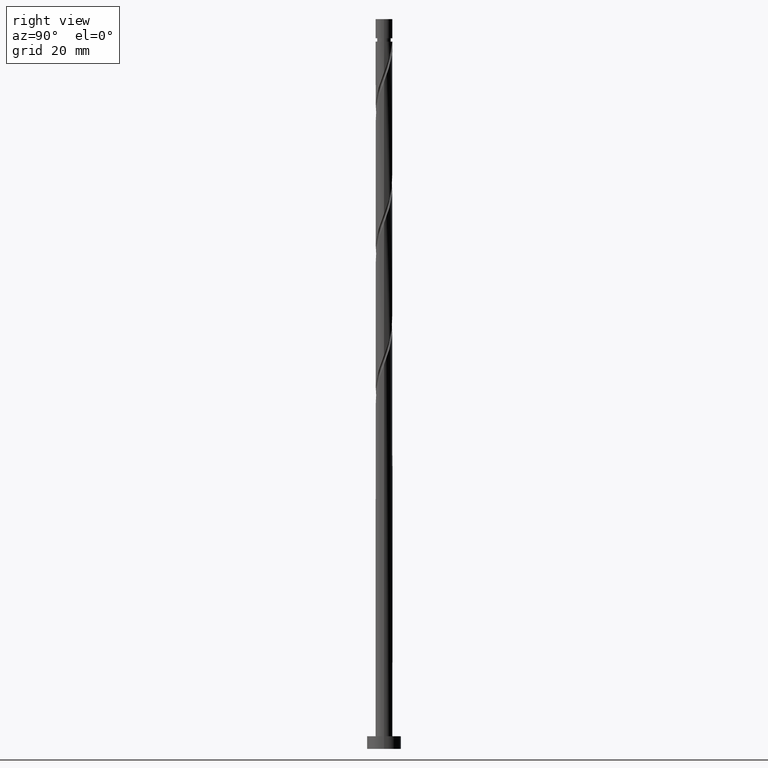
[diagram: clean part render]
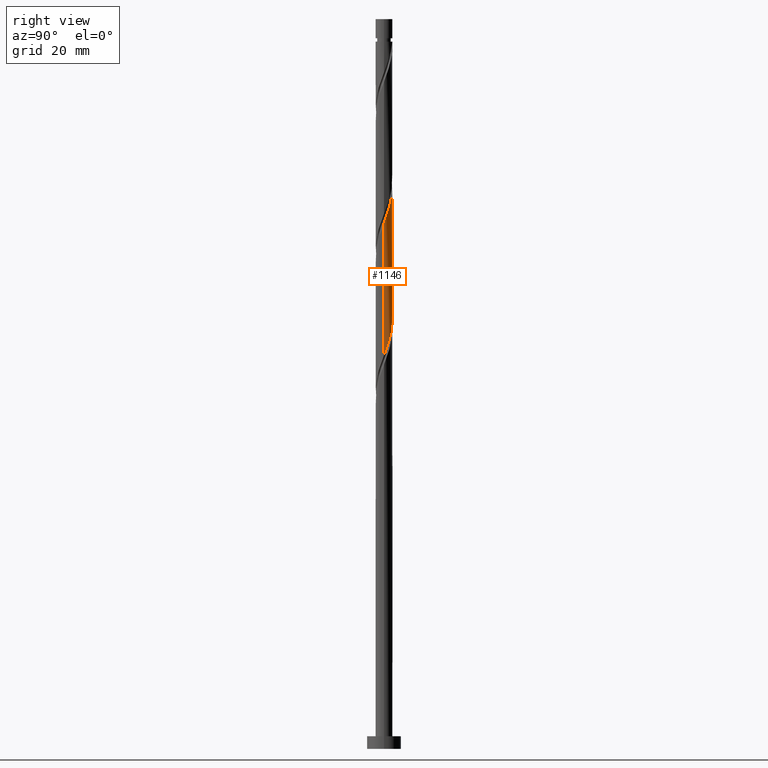
[diagram: same view with one face highlighted and labeled with its STEP entity id]
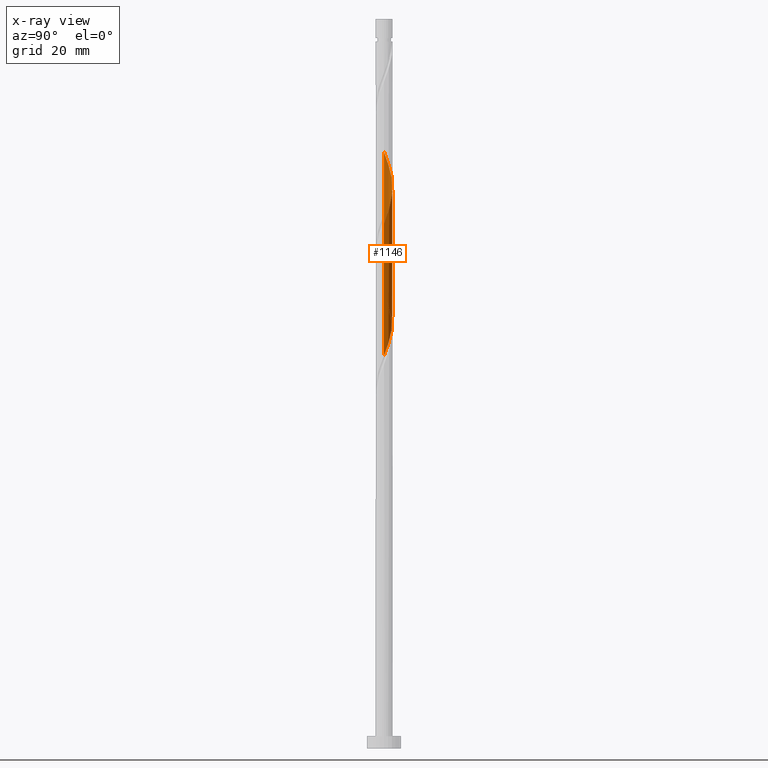
[diagram: x-ray of the same camera — body ghosted, the highlighted face saturated]
A machine part, right view. The second image highlights one B-rep face of the part: STEP entity #1146.
The next image is the same camera in x-ray: the body ghosted, the highlighted face saturated — about 0% of this face is hidden behind the body in this view.
In plain terms, the highlighted cylindrical surface (edge-blend (fillet) strip) has radius 2 mm, axis along (-0, -0, -1).
Its self-contained STEP definition (entity closure, byte-faithful):
#36 = VERTEX_POINT ( 'NONE', #1009 ) ;
#71 = CARTESIAN_POINT ( 'NONE',  ( 0.1228517034671602476, 1.996223298870951846, 131.9620761650799636 ) ) ;
#81 = CARTESIAN_POINT ( 'NONE',  ( -0.8917189533347237296, 1.790205940182199695, 134.7398539428577635 ) ) ;
#87 = CARTESIAN_POINT ( 'NONE',  ( -1.812764992401018516, 0.8849929959097673215, 138.2120761650799921 ) ) ;
#97 = CARTESIAN_POINT ( 'NONE',  ( 1.896407278838824428, 0.6353262412077160803, 94.46207616507996363 ) ) ;
#105 = CARTESIAN_POINT ( 'NONE',  ( -0.6353262412077169685, 1.896407278838823984, 102.7954094984133349 ) ) ;
#160 = CARTESIAN_POINT ( 'NONE',  ( -2.000000000000000000, -3.050572026498495541E-15, 109.4145317091789735 ) ) ;
#195 = DIRECTION ( 'NONE',  ( -0.000000000000000000, -0.000000000000000000, -1.000000000000000000 ) ) ;
#210 = CARTESIAN_POINT ( 'NONE',  ( -0.3979949748426484524, 1.960000000000002185, 133.3509650539688778 ) ) ;
#228 = CARTESIAN_POINT ( 'NONE',  ( -0.1399560795713507833, 2.012397032465270019, 132.6565206095244207 ) ) ;
#234 = CARTESIAN_POINT ( 'NONE',  ( -2.000000000000000000, 0.000000000000000000, 172.0000000000000000 ) ) ;
#238 = CARTESIAN_POINT ( 'NONE',  ( 1.672808912829666150, 1.127404036555501810, 127.1009650539689204 ) ) ;
#281 = EDGE_LOOP ( 'NONE', ( #1063, #1725, #1651, #1118 ) ) ;
#320 = AXIS2_PLACEMENT_3D ( 'NONE', #357, #1006, #1551 ) ;
#340 = CARTESIAN_POINT ( 'NONE',  ( 0.6560338701139463158, 1.907602967534731686, 99.32318727619112053 ) ) ;
#349 = CARTESIAN_POINT ( 'NONE',  ( -0.1228517034671581937, 1.996223298870949403, 101.4065206095244065 ) ) ;
#352 = LINE ( 'NONE', #234, #804 ) ;
#357 = CARTESIAN_POINT ( 'NONE',  ( 0.000000000000000000, 0.000000000000000000, 172.0000000000000000 ) ) ;
#366 = CARTESIAN_POINT ( 'NONE',  ( -1.907602967534732130, 0.6560338701139447615, 107.6565206095244491 ) ) ;
#425 = VERTEX_POINT ( 'NONE', #160 ) ;
#464 = CARTESIAN_POINT ( 'NONE',  ( 1.667354236715039351, 1.104504345536226007, 95.85096505396887778 ) ) ;
#473 = CARTESIAN_POINT ( 'NONE',  ( 1.960000000000002185, 0.3979949748426485634, 125.0176317206355492 ) ) ;
#487 = VERTEX_POINT ( 'NONE', #1117 ) ;
#491 = CARTESIAN_POINT ( 'NONE',  ( 0.3979949748426492295, 1.959999999999999520, 100.0176317206355492 ) ) ;
#607 = CARTESIAN_POINT ( 'NONE',  ( 1.907602967534735461, 0.6560338701139445394, 125.7120761650800347 ) ) ;
#616 = CARTESIAN_POINT ( 'NONE',  ( 0.8849929959097678767, 1.812764992401018072, 129.8787428317466492 ) ) ;
#624 = CARTESIAN_POINT ( 'NONE',  ( -1.896407278838825983, 0.6353262412077188559, 138.9065206095243923 ) ) ;
#626 = EDGE_CURVE ( 'NONE', #487, #36, #1363, .T. ) ;
#634 = CARTESIAN_POINT ( 'NONE',  ( 1.996223298870950291, 0.1228517034671573194, 93.07318727619110632 ) ) ;
#642 = CARTESIAN_POINT ( 'NONE',  ( 0.8917189533347243957, 1.790205940182196809, 98.62874283174666346 ) ) ;
#667 = EDGE_CURVE ( 'NONE', #425, #1250, #709, .T. ) ;
#690 = CARTESIAN_POINT ( 'NONE',  ( 2.000000000000000000, 2.449293598294706414E-16, 172.0000000000000000 ) ) ;
#699 = LINE ( 'NONE', #690, #1589 ) ;
#709 =( BOUNDED_CURVE ( )  B_SPLINE_CURVE ( 2, ( #1683, #1008, #869, #366, #1410, #1692, #1701, #1553, #1313, #778, #105, #1562, #349, #768, #491, #340, #642, #1572, #758, #1304, #464, #740, #97, #877, #634, #907, #1172 ),
 .UNSPECIFIED., .F., .T. ) 
 B_SPLINE_CURVE_WITH_KNOTS ( ( 3, 2, 2, 2, 2, 2, 2, 2, 2, 2, 2, 2, 2, 3 ),
 ( 0.6795317669814464612, 0.6875000000000000000, 0.6979166666666666297, 0.7083333333333333703, 0.7187500000000000000, 0.7291666666666666297, 0.7395833333333333703, 0.7500000000000000000, 0.7604166666666666297, 0.7708333333333333703, 0.7812500000000000000, 0.7916666666666666297, 0.8020833333333333703, 0.8045317669814464612 ),
 .UNSPECIFIED. ) 
 CURVE ( )  GEOMETRIC_REPRESENTATION_ITEM ( )  RATIONAL_B_SPLINE_CURVE ( ( 0.9062941362546449442, 0.9031415850403493595, 0.9090909090909247148, 0.9013135103398430825, 0.9090909090909247148, 0.9013135103398430825, 0.9090909090909247148, 0.9013135103398430825, 0.9090909090909247148, 0.9013135103398430825, 0.9090909090909247148, 0.9013135103398430825, 0.9090909090909247148, 0.9013135103398430825, 0.9090909090909247148, 0.9013135103398430825, 0.9090909090909247148, 0.9013135103398430825, 0.9090909090909247148, 0.9013135103398430825, 0.9090909090909247148, 0.9013135103398430825, 0.9090909090909247148, 0.9013135103398430825, 0.9090909090909247148, 0.9072628343904183268, 0.9062941362546449442 ) ) 
 REPRESENTATION_ITEM ( '' )  );
#740 = CARTESIAN_POINT ( 'NONE',  ( 1.812764992401016961, 0.8849929959097641019, 95.15652060952442071 ) ) ;
#749 = CARTESIAN_POINT ( 'NONE',  ( 0.6353262412077195220, 1.896407278838825761, 130.5731872761910779 ) ) ;
#758 = CARTESIAN_POINT ( 'NONE',  ( 1.324673758792282552, 1.498412303996174311, 97.23985394285777772 ) ) ;
#768 = CARTESIAN_POINT ( 'NONE',  ( 0.1399560795713529482, 2.012397032465267799, 100.7120761650800205 ) ) ;
#774 = CARTESIAN_POINT ( 'NONE',  ( 2.000000000000000000, 2.572050924302653158E-15, 92.74786504251228791 ) ) ;
#778 = CARTESIAN_POINT ( 'NONE',  ( -0.8849929959097655452, 1.812764992401016073, 103.4898539428577635 ) ) ;
#804 = VECTOR ( 'NONE', #195, 1000.000000000000000 ) ;
#869 = CARTESIAN_POINT ( 'NONE',  ( -1.959999999999999520, 0.3979949748426487299, 108.3509650539688778 ) ) ;
#877 = CARTESIAN_POINT ( 'NONE',  ( 1.980049565276633006, 0.3856594865056681698, 93.76763172063554919 ) ) ;
#888 = CARTESIAN_POINT ( 'NONE',  ( 2.000000000000002665, 3.514139344250696490E-16, 123.9540650654254677 ) ) ;
#898 = CARTESIAN_POINT ( 'NONE',  ( -1.521943481029065071, 1.324015695162690243, 136.8231872761911347 ) ) ;
#907 = CARTESIAN_POINT ( 'NONE',  ( 2.000000000000000444, 0.06148390331534172443, 92.91102873054040856 ) ) ;
#935 = EDGE_CURVE ( 'NONE', #487, #1250, #699, .T. ) ;
#1000 = CARTESIAN_POINT ( 'NONE',  ( -1.980049565276635226, 0.3856594865056702237, 139.6009650539688778 ) ) ;
#1006 = DIRECTION ( 'NONE',  ( -0.000000000000000000, -0.000000000000000000, -1.000000000000000000 ) ) ;
#1008 = CARTESIAN_POINT ( 'NONE',  ( -1.999999999999999556, 0.2010075630518470824, 108.8811053399896878 ) ) ;
#1009 = CARTESIAN_POINT ( 'NONE',  ( -2.000000000000002220, 1.846792378787067730E-15, 140.6207317320921959 ) ) ;
#1020 = CARTESIAN_POINT ( 'NONE',  ( -1.667354236715041127, 1.104504345536228449, 137.5176317206355634 ) ) ;
#1031 = CARTESIAN_POINT ( 'NONE',  ( 0.3856594865056714450, 1.980049565276634782, 131.2676317206355350 ) ) ;
#1040 = CARTESIAN_POINT ( 'NONE',  ( -1.324673758792283440, 1.498412303996177419, 136.1287428317466492 ) ) ;
#1063 = ORIENTED_EDGE ( 'NONE', *, *, #626, .F. ) ;
#1117 = CARTESIAN_POINT ( 'NONE',  ( 2.000000000000002665, 3.514139344250696490E-16, 123.9540650654254677 ) ) ;
#1118 = ORIENTED_EDGE ( 'NONE', *, *, #1205, .F. ) ;
#1146 = ADVANCED_FACE ( 'NONE', ( #1151 ), #1275, .T. ) ;
#1147 = CARTESIAN_POINT ( 'NONE',  ( -2.000000000000002220, 1.846792378787067730E-15, 140.6207317320921959 ) ) ;
#1151 = FACE_OUTER_BOUND ( 'NONE', #281, .T. ) ;
#1153 = CARTESIAN_POINT ( 'NONE',  ( -1.127404036555502698, 1.672808912829665484, 135.4342983873022206 ) ) ;
#1172 = CARTESIAN_POINT ( 'NONE',  ( 2.000000000000000000, 2.572050924302653158E-15, 92.74786504251227370 ) ) ;
#1180 = CARTESIAN_POINT ( 'NONE',  ( -1.996223298870951846, 0.1228517034671590541, 140.2954094984133633 ) ) ;
#1205 = EDGE_CURVE ( 'NONE', #36, #425, #352, .T. ) ;
#1250 = VERTEX_POINT ( 'NONE', #774 ) ;
#1275 = CYLINDRICAL_SURFACE ( 'NONE', #320, 2.000000000000000000 ) ;
#1278 = CARTESIAN_POINT ( 'NONE',  ( 1.498412303996177863, 1.324673758792282330, 127.7954094984132780 ) ) ;
#1285 = CARTESIAN_POINT ( 'NONE',  ( -0.6560338701139450945, 1.907602967534734573, 134.0454094984133349 ) ) ;
#1294 = CARTESIAN_POINT ( 'NONE',  ( 2.000000000000003553, 0.2010075630518382839, 124.4874914346147534 ) ) ;
#1304 = CARTESIAN_POINT ( 'NONE',  ( 1.521943481029063516, 1.324015695162687356, 96.54540949841333486 ) ) ;
#1313 = CARTESIAN_POINT ( 'NONE',  ( -1.104504345536226673, 1.667354236715039129, 104.1842983873022064 ) ) ;
#1363 =( BOUNDED_CURVE ( )  B_SPLINE_CURVE ( 2, ( #888, #1294, #473, #607, #1580, #238, #1278, #1545, #1435, #616, #749, #1031, #71, #228, #210, #1285, #81, #1153, #1040, #898, #1020, #87, #624, #1000, #1180, #1426, #1147 ),
 .UNSPECIFIED., .F., .T. ) 
 B_SPLINE_CURVE_WITH_KNOTS ( ( 3, 2, 2, 2, 2, 2, 2, 2, 2, 2, 2, 2, 2, 3 ),
 ( 0.4295317669814461836, 0.4375000000000000000, 0.4479166666666666297, 0.4583333333333333703, 0.4687500000000000000, 0.4791666666666666297, 0.4895833333333333703, 0.5000000000000000000, 0.5104166666666667407, 0.5208333333333332593, 0.5312500000000000000, 0.5416666666666667407, 0.5520833333333332593, 0.5545317669814462391 ),
 .UNSPECIFIED. ) 
 CURVE ( )  GEOMETRIC_REPRESENTATION_ITEM ( )  RATIONAL_B_SPLINE_CURVE ( ( 0.9062941362546507174, 0.9031415850403546886, 0.9090909090909304879, 0.9013135103398485226, 0.9090909090909304879, 0.9013135103398485226, 0.9090909090909304879, 0.9013135103398485226, 0.9090909090909304879, 0.9013135103398485226, 0.9090909090909304879, 0.9013135103398485226, 0.9090909090909304879, 0.9013135103398485226, 0.9090909090909304879, 0.9013135103398485226, 0.9090909090909304879, 0.9013135103398485226, 0.9090909090909304879, 0.9013135103398485226, 0.9090909090909304879, 0.9013135103398485226, 0.9090909090909304879, 0.9013135103398485226, 0.9090909090909304879, 0.9072628343904241000, 0.9062941362546506063 ) ) 
 REPRESENTATION_ITEM ( '' )  );
#1410 = CARTESIAN_POINT ( 'NONE',  ( -1.790205940182197031, 0.8917189533347232855, 106.9620761650800063 ) ) ;
#1426 = CARTESIAN_POINT ( 'NONE',  ( -2.000000000000002665, 0.06148390331534676900, 140.4575680440640610 ) ) ;
#1435 = CARTESIAN_POINT ( 'NONE',  ( 1.104504345536228671, 1.667354236715040683, 129.1842983873021922 ) ) ;
#1495 = DIRECTION ( 'NONE',  ( -0.000000000000000000, -0.000000000000000000, -1.000000000000000000 ) ) ;
#1545 = CARTESIAN_POINT ( 'NONE',  ( 1.324015695162691575, 1.521943481029063516, 128.4898539428578204 ) ) ;
#1551 = DIRECTION ( 'NONE',  ( -1.000000000000000000, 0.000000000000000000, 0.000000000000000000 ) ) ;
#1553 = CARTESIAN_POINT ( 'NONE',  ( -1.324015695162687578, 1.521943481029062850, 104.8787428317466492 ) ) ;
#1562 = CARTESIAN_POINT ( 'NONE',  ( -0.3856594865056693355, 1.980049565276632340, 102.1009650539688920 ) ) ;
#1572 = CARTESIAN_POINT ( 'NONE',  ( 1.127404036555502920, 1.672808912829662153, 97.93429838730220638 ) ) ;
#1580 = CARTESIAN_POINT ( 'NONE',  ( 1.790205940182200139, 0.8917189533347229524, 126.4065206095244491 ) ) ;
#1589 = VECTOR ( 'NONE', #1495, 1000.000000000000000 ) ;
#1651 = ORIENTED_EDGE ( 'NONE', *, *, #667, .F. ) ;
#1683 = CARTESIAN_POINT ( 'NONE',  ( -2.000000000000000000, -3.050572026498495541E-15, 109.4145317091789735 ) ) ;
#1692 = CARTESIAN_POINT ( 'NONE',  ( -1.672808912829662820, 1.127404036555501587, 106.2676317206355634 ) ) ;
#1701 = CARTESIAN_POINT ( 'NONE',  ( -1.498412303996174533, 1.324673758792282108, 105.5731872761910921 ) ) ;
#1725 = ORIENTED_EDGE ( 'NONE', *, *, #935, .T. ) ;